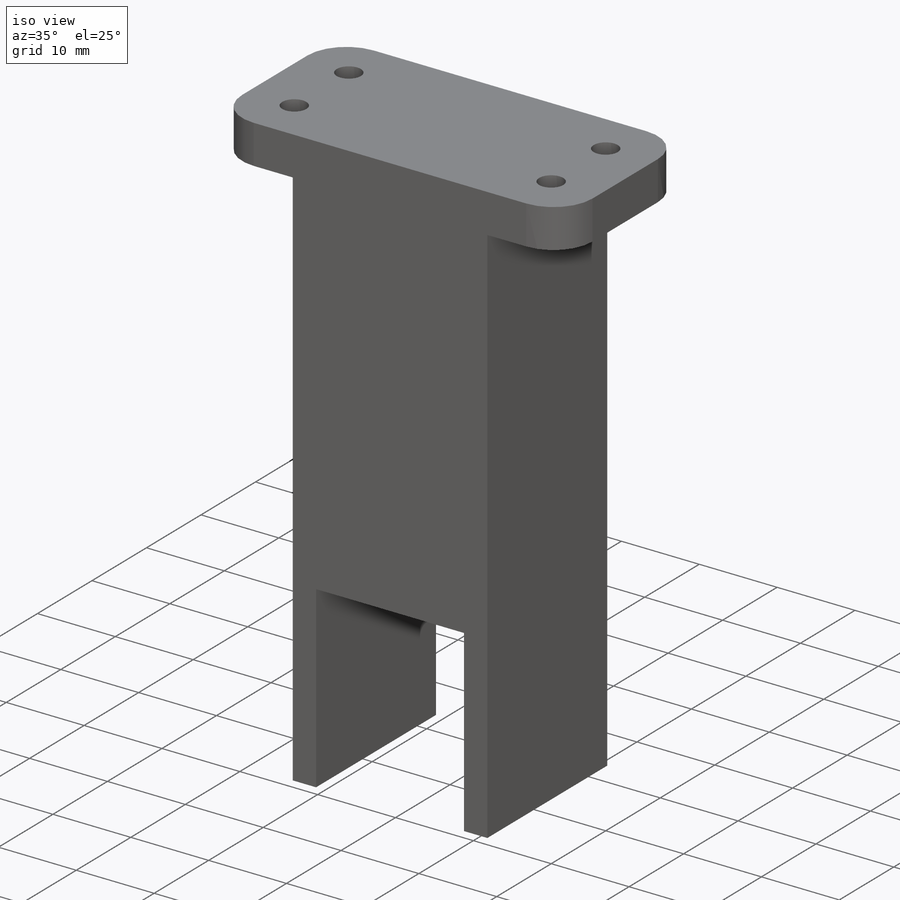
[diagram: iso view]
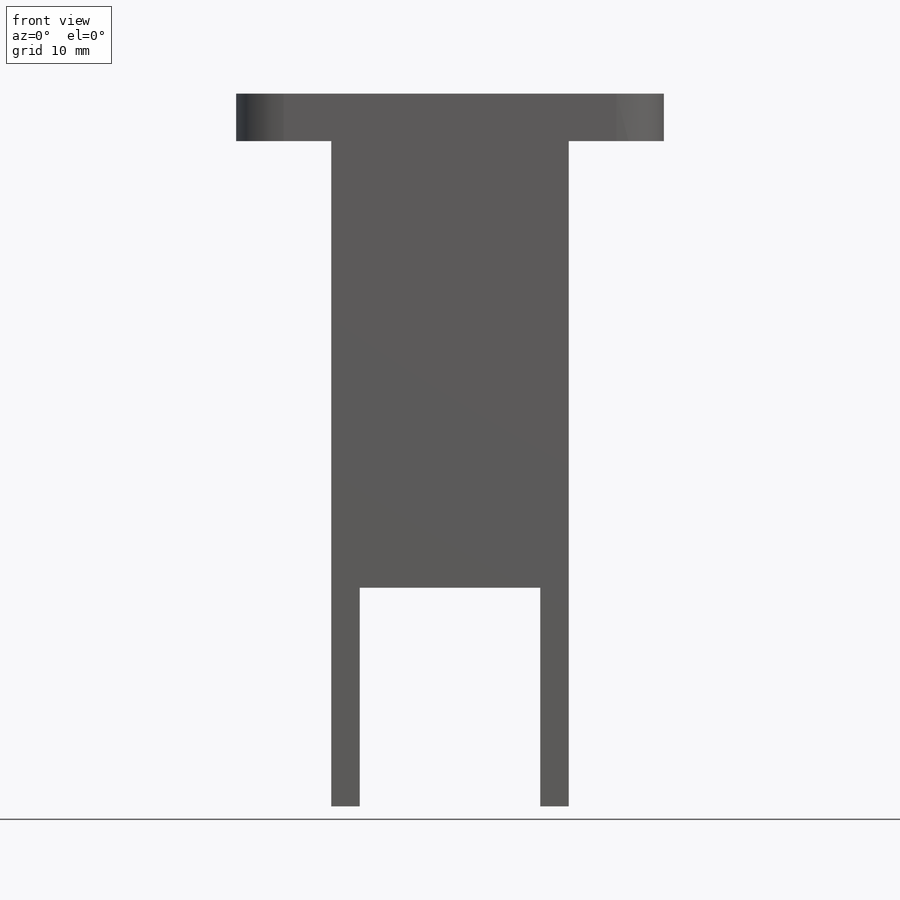
[diagram: front view]
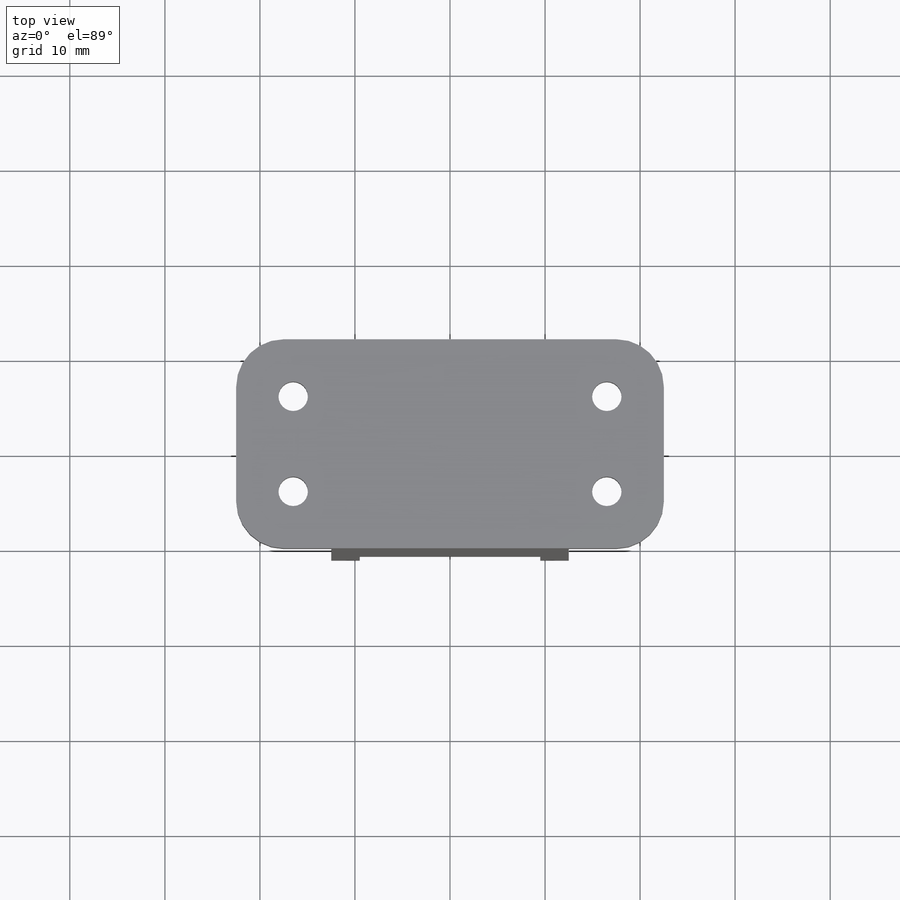
[diagram: top view]
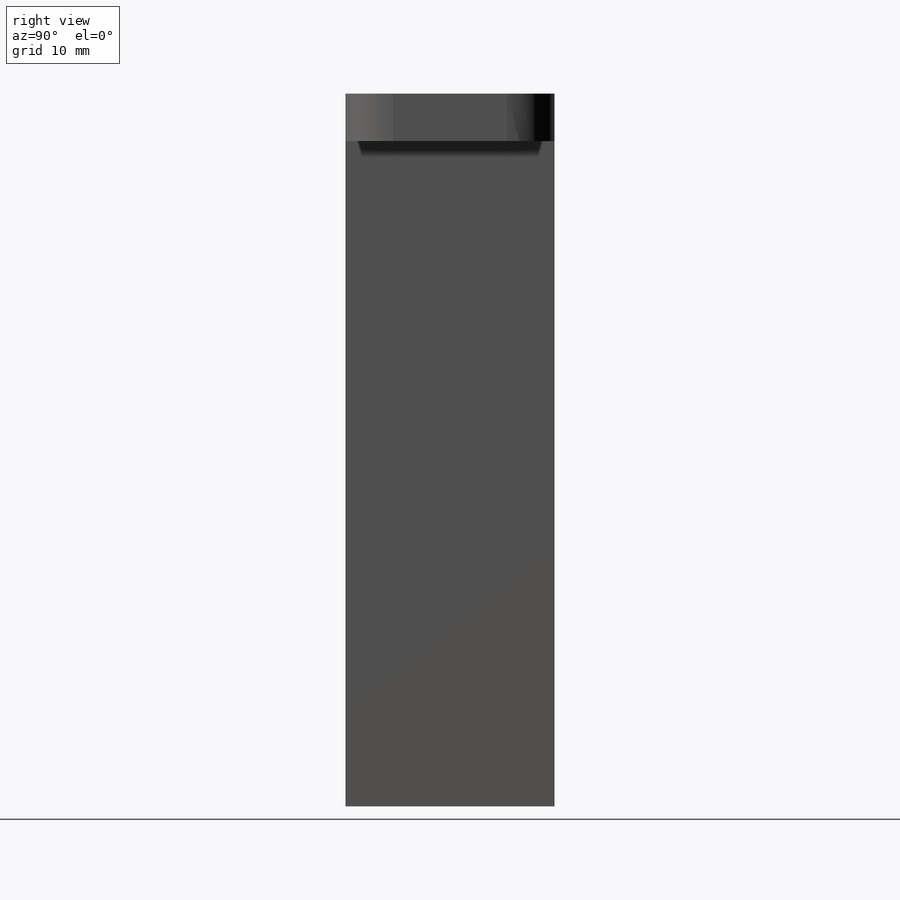
[diagram: right view]
SOLIDWORKS PART (.sldprt)
format: sldprt  version: not decoded by parser v0  size: 438,272 bytes
history: native  units: mm
features: sketch x16, fillet x12, extrude x8, cut_extrude x8, plane x3, material x1 (+10 scaffold rows collapsed)
feature tree (58):
  scaffold x10  (default folders/planes/origin — collapsed)
  material  "Material <sin especificar>"
  plane  "Alzado"
  plane  "Planta"
  plane  "Vista lateral"
  sketch  "Croquis1"  dims[D1=20.0mm D2=7.0mm]
  extrude  "Extruir1"  Depth=12mm
  sketch  "Croquis2"  dims[D1=45.0mm D2=22.0mm]
  extrude  "Saliente-Extruir1"  Depth=5mm
  fillet  "Redondeo1"  Radius=5mm
  fillet  "Redondeo2"  Radius=5mm
  fillet  "Redondeo3"  Radius=5mm
  fillet  "Redondeo4"  Radius=5mm
  sketch  "Croquis3"  dims[D1=8.2mm]
  cut_extrude  "Cortar-Extruir1"  Depth=45mm
  sketch  "Croquis4"  dims[c1.D1=3.0mm c1.D2=~7.148454mm c2.D1=3.1mm c2.D2=3.1mm c2.D3=3.1mm c2.D4=3.1mm c2.D9=3.1mm c3.D2=3.1mm c3.D5=10.0mm c3.D6=10.0mm c3.D7=6.0mm c3.D8=5.0mm c3.D9=6.0mm c4.D5=6.0mm c4.D8=6.0mm c4.D9=6.0mm c4.D10=6.0mm]
  cut_extrude  "Cortar-Extruir2"  Depth=45mm
  sketch  "Croquis7"
  cut_extrude  "Cortar-Extruir4"  Depth=70mm
  sketch  "Croquis8"  dims[c1.D1=45.0mm c1.D2=45.0mm c2.D1=22.0mm]
  extrude  "Saliente-Extruir2"  Depth=5mm
  fillet  "Redondeo5"  Radius=5mm
  fillet  "Redondeo6"  Radius=5mm
  fillet  "Redondeo7"  Radius=5mm
  fillet  "Redondeo8"  Radius=5mm
  sketch  "Croquis9"
  cut_extrude  "Cortar-Extruir5"  Depth=15mm
  sketch  "Croquis10"  dims[c1.D1=13.0mm c1.D2=~15.011107mm c2.D1=13.0mm]
  extrude  "Saliente-Extruir3"  Depth=10mm
  sketch  "Croquis11"
  cut_extrude  "Cortar-Extruir8"  Depth=30mm
  sketch  "Croquis12"  dims[D1=25.0mm D2=22.0mm]
  extrude  "Saliente-Extruir4"  Depth=70mm
  sketch  "Croquis13"  dims[c1.D1=19.0mm c1.D2=16.0mm c2.D1=22.0mm]
  cut_extrude  "Cortar-Extruir9"  Depth=70mm
  sketch  "Croquis14"  dims[D1=19.0mm D2=12.5mm D3=23.0mm]
  cut_extrude  "Cortar-Extruir10"  Depth=70mm
  sketch  "Croquis15"  dims[D1=23.0mm D2=23.0mm D3=3.0mm D4=3.0mm]
  cut_extrude  "Cortar-Extruir11"  Depth=70mm
  fillet  "Redondeo9"  Radius=5mm
  fillet  "Redondeo10"  Radius=5mm
  fillet  "Redondeo11"  Radius=5mm
  fillet  "Redondeo12"  Radius=5mm
  sketch  "Croquis16"  dims[D1=3.0mm]
  extrude  "Saliente-Extruir5"  Depth=47mm
  sketch  "Croquis17"  dims[D1=22.0mm D2=23.0mm]
  extrude  "Saliente-Extruir6"  Depth=3mm
  sketch  "Croquis18"  dims[D1=23.0mm D2=22.0mm]
  extrude  "Saliente-Extruir7"  Depth=3mm
decode coverage: 41 of 44 modeling features carry decoded parameters
note: ~ marks probable driven/reference dimensions
note: suppression state not decoded; provenance and decode notes live in map.json
